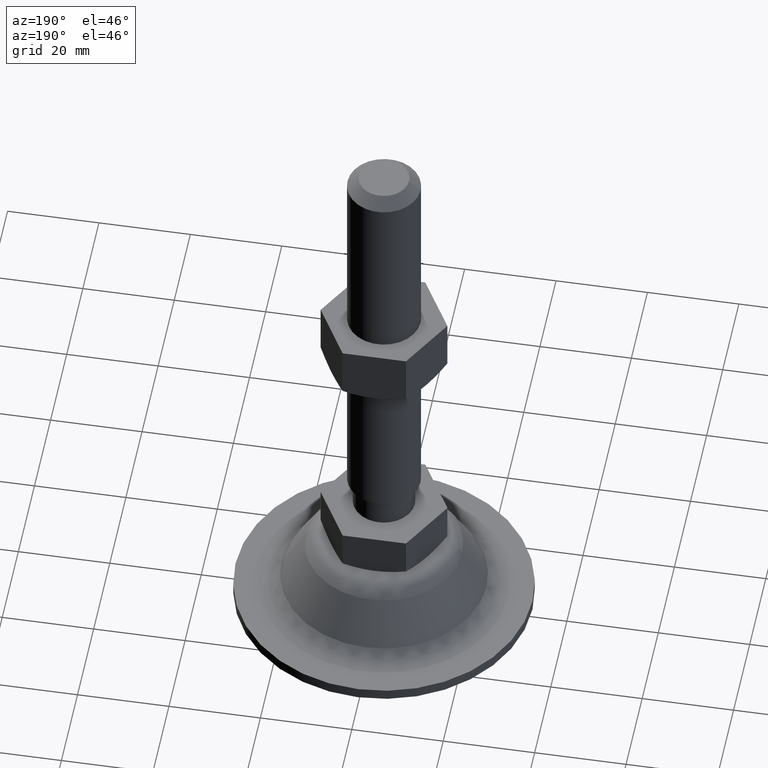
[diagram: clean part render]
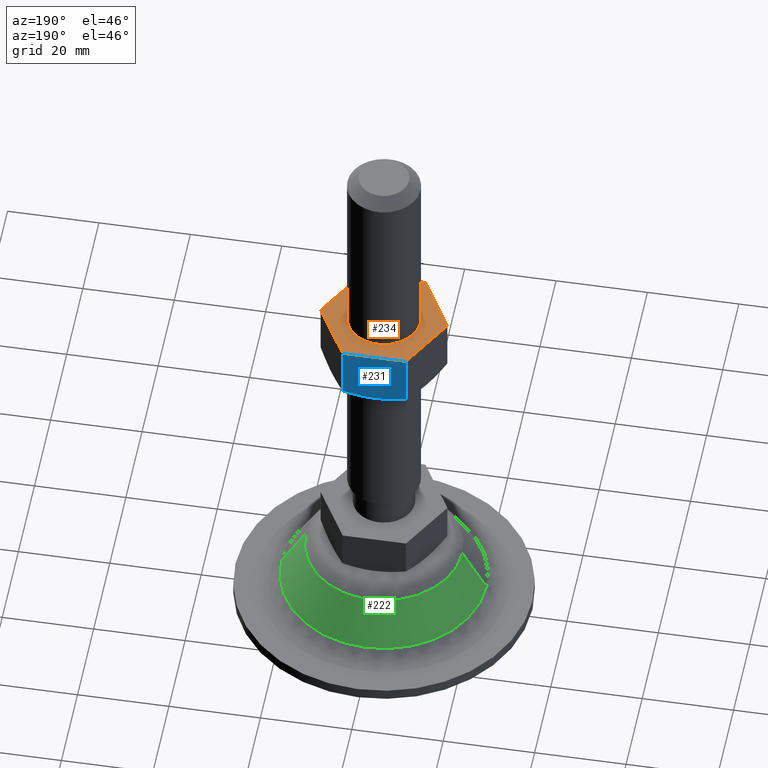
[diagram: same view with three faces highlighted in distinct colors, each labeled with its STEP entity id]
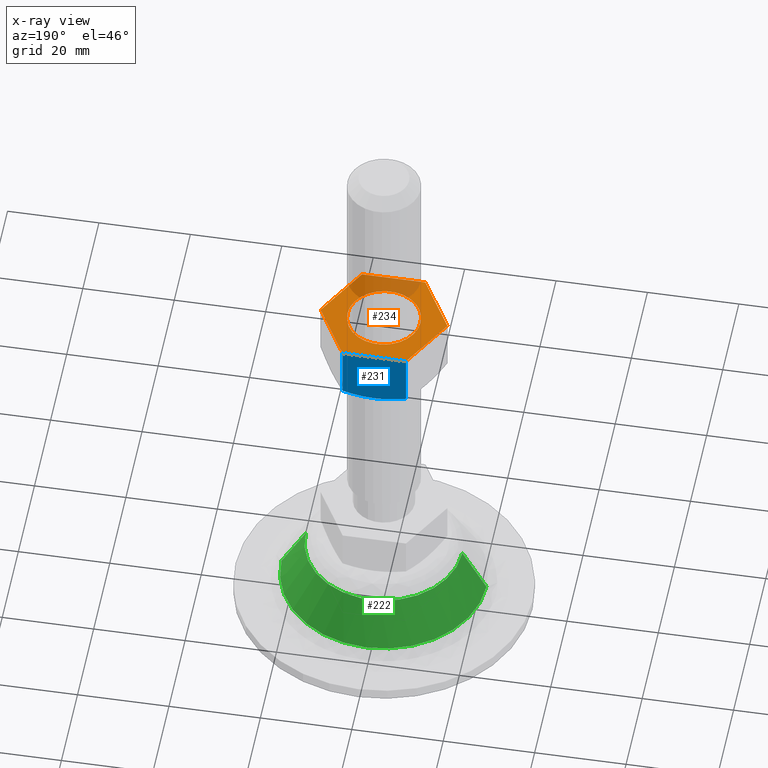
[diagram: x-ray of the same camera — body ghosted, the three highlighted faces saturated]
A machine part, auxiliary view with three faces highlighted in distinct colors.
The next image is the same camera in x-ray (body ghosted, the three faces saturated) — at least one of them is partly hidden behind the body in this view.
Their STEP definitions:

[orange] entity #234 — the highlighted planar face has unit normal (0, 0, -1).
#234=ADVANCED_FACE('',(#1101,#1102),#1100,.F.);
#1100=PLANE('',#1842);
#1101=FACE_OUTER_BOUND('',#1843,.T.);
#1102=FACE_BOUND('',#1844,.T.);
#1839=CARTESIAN_POINT('',(1.66276877527E+01,-1.44000000000E+01,5.65000000000E+01));
#1840=DIRECTION('',(-0.00000000000E+00,0.00000000000E+00,-1.00000000000E+00));
#1841=DIRECTION('',(-1.00000000000E+00,0.00000000000E+00,0.00000000000E+00));
#1842=AXIS2_PLACEMENT_3D('',#1839,#1840,#1841);
#1843=EDGE_LOOP('',(#2265,#2266,#2267,#2268,#2269,#2270));
#1844=EDGE_LOOP('',(#2271,#2272));
#2265=ORIENTED_EDGE('',*,*,#2482,.T.);
#2266=ORIENTED_EDGE('',*,*,#2479,.T.);
#2267=ORIENTED_EDGE('',*,*,#2476,.T.);
#2268=ORIENTED_EDGE('',*,*,#2485,.T.);
#2269=ORIENTED_EDGE('',*,*,#2488,.T.);
#2270=ORIENTED_EDGE('',*,*,#2490,.T.);
#2271=ORIENTED_EDGE('',*,*,#2495,.F.);
#2272=ORIENTED_EDGE('',*,*,#2496,.F.);
#2476=EDGE_CURVE('',#3696,#3710,#3717,.T.);
#2479=EDGE_CURVE('',#3724,#3696,#3737,.T.);
#2482=EDGE_CURVE('',#3744,#3724,#3757,.T.);
#2485=EDGE_CURVE('',#3710,#3770,#3777,.T.);
#2488=EDGE_CURVE('',#3770,#3790,#3797,.T.);
#2490=EDGE_CURVE('',#3790,#3744,#3809,.T.);
#2495=EDGE_CURVE('',#3843,#3844,#3845,.T.);
#2496=EDGE_CURVE('',#3844,#3843,#3851,.T.);
#3696=VERTEX_POINT('',#4680);
#3710=VERTEX_POINT('',#4697);
#3717=LINE('',#4701,#4702);
#3724=VERTEX_POINT('',#4705);
#3737=LINE('',#4723,#4724);
#3744=VERTEX_POINT('',#4727);
#3757=LINE('',#4743,#4744);
#3770=VERTEX_POINT('',#4759);
#3777=LINE('',#4763,#4764);
#3790=VERTEX_POINT('',#4781);
#3797=LINE('',#4785,#4786);
#3809=LINE('',#4800,#4801);
#3843=VERTEX_POINT('',#4823);
#3844=VERTEX_POINT('',#4824);
#3845=CIRCLE('',#4828,8.00000000000E+00);
#3851=CIRCLE('',#4832,8.00000000000E+00);
#4680=CARTESIAN_POINT('',(6.92820323028E+00,-1.20000000000E+01,5.65000000000E+01));
#4697=CARTESIAN_POINT('',(1.38564064606E+01,0.00000000000E+00,5.65000000000E+01));
#4701=CARTESIAN_POINT('',(6.92820323028E+00,-1.20000000000E+01,5.65000000000E+01));
#4702=VECTOR('',#4703,1.38564064606E+01);
#4703=DIRECTION('',(5.00000000000E-01,8.66025403784E-01,0.00000000000E+00));
#4705=CARTESIAN_POINT('',(-6.92820323028E+00,-1.20000000000E+01,5.65000000000E+01));
#4723=CARTESIAN_POINT('',(-6.92820323028E+00,-1.20000000000E+01,5.65000000000E+01));
#4724=VECTOR('',#4725,1.38564064606E+01);
#4725=DIRECTION('',(1.00000000000E+00,-3.69208835786E-14,0.00000000000E+00));
#4727=CARTESIAN_POINT('',(-1.38564064606E+01,0.00000000000E+00,5.65000000000E+01));
#4743=CARTESIAN_POINT('',(-1.38564064606E+01,-5.41788836017E-14,5.65000000000E+01));
#4744=VECTOR('',#4745,1.38564064606E+01);
#4745=DIRECTION('',(5.00000000000E-01,-8.66025403784E-01,0.00000000000E+00));
#4759=CARTESIAN_POINT('',(6.92820323028E+00,1.20000000000E+01,5.65000000000E+01));
#4763=CARTESIAN_POINT('',(1.38564064606E+01,-1.77635683940E-15,5.65000000000E+01));
#4764=VECTOR('',#4765,1.38564064606E+01);
#4765=DIRECTION('',(-5.00000000000E-01,8.66025403784E-01,0.00000000000E+00));
#4781=CARTESIAN_POINT('',(-6.92820323027E+00,1.20000000000E+01,5.65000000000E+01));
#4785=CARTESIAN_POINT('',(6.92820323028E+00,1.20000000000E+01,5.65000000000E+01));
#4786=VECTOR('',#4787,1.38564064606E+01);
#4787=DIRECTION('',(-1.00000000000E+00,9.02510487476E-14,0.00000000000E+00));
#4800=CARTESIAN_POINT('',(-6.92820323027E+00,1.20000000000E+01,5.65000000000E+01));
#4801=VECTOR('',#4802,1.38564064606E+01);
#4802=DIRECTION('',(-5.00000000000E-01,-8.66025403784E-01,0.00000000000E+00));
#4823=CARTESIAN_POINT('',(8.00000000000E+00,1.48029736617E-15,5.65000000000E+01));
#4824=CARTESIAN_POINT('',(-8.00000000000E+00,0.00000000000E+00,5.65000000000E+01));
#4825=CARTESIAN_POINT('',(0.00000000000E+00,0.00000000000E+00,5.65000000000E+01));
#4826=DIRECTION('',(0.00000000000E+00,0.00000000000E+00,1.00000000000E+00));
#4827=DIRECTION('',(-1.00000000000E+00,-1.22460635382E-16,0.00000000000E+00));
#4828=AXIS2_PLACEMENT_3D('',#4825,#4826,#4827);
#4829=CARTESIAN_POINT('',(0.00000000000E+00,0.00000000000E+00,5.65000000000E+01));
#4830=DIRECTION('',(0.00000000000E+00,0.00000000000E+00,1.00000000000E+00));
#4831=DIRECTION('',(-1.00000000000E+00,-1.22460635382E-16,0.00000000000E+00));
#4832=AXIS2_PLACEMENT_3D('',#4829,#4830,#4831);

[blue] entity #231 — the highlighted planar face has unit normal (0, 1, 0).
#231=ADVANCED_FACE('',(#1070),#1069,.T.);
#1069=PLANE('',#1826);
#1070=FACE_OUTER_BOUND('',#1827,.T.);
#1823=CARTESIAN_POINT('',(8.31384387633E+00,1.20000000000E+01,4.25173685591E+01));
#1824=DIRECTION('',(9.02640688075E-14,1.00000000000E+00,0.00000000000E+00));
#1825=DIRECTION('',(-1.00000000000E+00,9.02640688075E-14,0.00000000000E+00));
#1826=AXIS2_PLACEMENT_3D('',#1823,#1824,#1825);
#1827=EDGE_LOOP('',(#2253,#2254,#2255,#2256));
#2253=ORIENTED_EDGE('',*,*,#2484,.F.);
#2254=ORIENTED_EDGE('',*,*,#2486,.T.);
#2255=ORIENTED_EDGE('',*,*,#2487,.T.);
#2256=ORIENTED_EDGE('',*,*,#2488,.F.);
#2484=EDGE_CURVE('',#3763,#3770,#3771,.T.);
#2486=EDGE_CURVE('',#3763,#3783,#3784,.T.);
#2487=EDGE_CURVE('',#3783,#3790,#3791,.T.);
#2488=EDGE_CURVE('',#3770,#3790,#3797,.T.);
#3763=VERTEX_POINT('',#4746);
#3770=VERTEX_POINT('',#4759);
#3771=LINE('',#4760,#4761);
#3783=VERTEX_POINT('',#4766);
#3784=(BOUNDED_CURVE() B_SPLINE_CURVE(3,(#4767,#4768,#4769,#4770,#4771,#4772,#4773,#4774,#4775,#4776,#4777,#4778,#4779,#4780),.UNSPECIFIED.,.F.,.F.) B_SPLINE_CURVE_WITH_KNOTS((4,2,2,2,2,2,4),(-2.69684747249E-02,-2.34598961264E-02,-2.17056068272E-02,-1.99513175280E-02,-1.64427389296E-02,-1.46884496304E-02,-1.29341603312E-02),.UNSPECIFIED.) CURVE() GEOMETRIC_REPRESENTATION_ITEM() RATIONAL_B_SPLINE_CURVE((1.00000000000E+00,1.00000000000E+00,1.00000000000E+00,1.00000000000E+00,1.00000000000E+00,1.00000000000E+00,1.00000000000E+00,1.00000000000E+00,1.00000000000E+00,1.00000000000E+00,1.00000000000E+00,1.00000000000E+00,1.00000000000E+00,1.00000000000E+00)) REPRESENTATION_ITEM('') );
#3790=VERTEX_POINT('',#4781);
#3791=LINE('',#4782,#4783);
#3797=LINE('',#4785,#4786);
#4746=CARTESIAN_POINT('',(6.92820323028E+00,1.20000000000E+01,4.48604719041E+01));
#4759=CARTESIAN_POINT('',(6.92820323028E+00,1.20000000000E+01,5.65000000000E+01));
#4760=CARTESIAN_POINT('',(6.92820323028E+00,1.20000000000E+01,4.48604719041E+01));
#4761=VECTOR('',#4762,1.16395280958E+01);
#4762=DIRECTION('',(0.00000000000E+00,0.00000000000E+00,1.00000000000E+00));
#4766=CARTESIAN_POINT('',(-6.92820323027E+00,1.20000000000E+01,4.48604719041E+01));
#4767=CARTESIAN_POINT('',(6.92820323028E+00,1.20000000000E+01,4.48604719041E+01));
#4768=CARTESIAN_POINT('',(5.80795744473E+00,1.20000000000E+01,4.45370848012E+01));
#4769=CARTESIAN_POINT('',(4.67369239590E+00,1.20000000000E+01,4.42679989547E+01));
#4770=CARTESIAN_POINT('',(2.94076384365E+00,1.20000000000E+01,4.39865001243E+01));
#4771=CARTESIAN_POINT('',(2.35783903988E+00,1.20000000000E+01,4.39131259368E+01));
#4772=CARTESIAN_POINT('',(1.17971032349E+00,1.20000000000E+01,4.38139386228E+01));
#4773=CARTESIAN_POINT('',(5.89301566878E-01,1.20000000000E+01,4.37887545501E+01));
#4774=CARTESIAN_POINT('',(-1.17018011384E+00,1.20000000000E+01,4.37885168719E+01));
#4775=CARTESIAN_POINT('',(-2.33392188463E+00,1.20000000000E+01,4.38893469595E+01));
#4776=CARTESIAN_POINT('',(-4.06778823012E+00,1.20000000000E+01,4.41688898052E+01));
#4777=CARTESIAN_POINT('',(-4.64381556499E+00,1.20000000000E+01,4.42831303510E+01));
#4778=CARTESIAN_POINT('',(-5.79257400674E+00,1.20000000000E+01,4.45476141100E+01));
#4779=CARTESIAN_POINT('',(-6.36374869851E+00,1.20000000000E+01,4.46975279162E+01));
#4780=CARTESIAN_POINT('',(-6.92820323027E+00,1.20000000000E+01,4.48604719041E+01));
#4781=CARTESIAN_POINT('',(-6.92820323027E+00,1.20000000000E+01,5.65000000000E+01));
#4782=CARTESIAN_POINT('',(-6.92820323027E+00,1.20000000000E+01,4.48604719041E+01));
#4783=VECTOR('',#4784,1.16395280958E+01);
#4784=DIRECTION('',(0.00000000000E+00,0.00000000000E+00,1.00000000000E+00));
#4785=CARTESIAN_POINT('',(6.92820323028E+00,1.20000000000E+01,5.65000000000E+01));
#4786=VECTOR('',#4787,1.38564064606E+01);
#4787=DIRECTION('',(-1.00000000000E+00,9.02510487476E-14,0.00000000000E+00));

[green] entity #222 — the highlighted face is a freeform B-spline surface patch.
#222=ADVANCED_FACE('',(#980),#979,.T.);
#979=( BOUNDED_SURFACE() B_SPLINE_SURFACE( 2,1,((#1730,#1731),(#1732,#1733),(#1734,#1735),(#1736,#1737),(#1738,#1739)), .UNSPECIFIED.,.F.,.F.,.F.) B_SPLINE_SURFACE_WITH_KNOTS((3,2,3),(2,2),(0.00000000000E+00,5.00000000000E-01,1.00000000000E+00),(0.00000000000E+00,1.00000000000E+00), .UNSPECIFIED. ) GEOMETRIC_REPRESENTATION_ITEM() RATIONAL_B_SPLINE_SURFACE(((1.00000000000E+00,1.00000000000E+00),(7.07106781187E-01,7.07106781187E-01),(1.00000000000E+00,1.00000000000E+00),(7.07106781187E-01,7.07106781187E-01),(1.00000000000E+00,1.00000000000E+00))) REPRESENTATION_ITEM('') SURFACE() );
#980=FACE_OUTER_BOUND('',#1740,.T.);
#1730=CARTESIAN_POINT('',(-1.71457232475E+01,2.09974550941E-15,-1.34262376818E+01));
#1731=CARTESIAN_POINT('',(-2.24181485332E+01,2.74543138439E-15,-2.28408304557E+01));
#1732=CARTESIAN_POINT('',(-1.71457232475E+01,1.71457232475E+01,-1.34262376818E+01));
#1733=CARTESIAN_POINT('',(-2.24181485332E+01,2.24181485331E+01,-2.28408304557E+01));
#1734=CARTESIAN_POINT('',(-3.19449515270E-11,1.71457232475E+01,-1.34262376818E+01));
#1735=CARTESIAN_POINT('',(-3.19446286841E-11,2.24181485331E+01,-2.28408304557E+01));
#1736=CARTESIAN_POINT('',(1.71457232474E+01,1.71457232475E+01,-1.34262376818E+01));
#1737=CARTESIAN_POINT('',(2.24181485331E+01,2.24181485331E+01,-2.28408304557E+01));
#1738=CARTESIAN_POINT('',(1.71457232474E+01,0.00000000000E+00,-1.34262376818E+01));
#1739=CARTESIAN_POINT('',(2.24181485331E+01,0.00000000000E+00,-2.28408304557E+01));
#1740=EDGE_LOOP('',(#2217,#2218,#2219,#2220));
#2217=ORIENTED_EDGE('',*,*,#2464,.T.);
#2218=ORIENTED_EDGE('',*,*,#2466,.T.);
#2219=ORIENTED_EDGE('',*,*,#2468,.F.);
#2220=ORIENTED_EDGE('',*,*,#2467,.F.);
#2464=EDGE_CURVE('',#3620,#3619,#3639,.T.);
#2466=EDGE_CURVE('',#3619,#3645,#3653,.T.);
#2467=EDGE_CURVE('',#3620,#3646,#3659,.T.);
#2468=EDGE_CURVE('',#3646,#3645,#3665,.T.);
#3619=VERTEX_POINT('',#4637);
#3620=VERTEX_POINT('',#4638);
#3639=CIRCLE('',#4654,1.71457232475E+01);
#3645=VERTEX_POINT('',#4655);
#3646=VERTEX_POINT('',#4656);
#3653=(BOUNDED_CURVE() B_SPLINE_CURVE(1,(#4661,#4662),.UNSPECIFIED.,.F.,.F.) B_SPLINE_CURVE_WITH_KNOTS((2,2),(0.00000000000E+00,1.00000000000E+00),.UNSPECIFIED.) CURVE() GEOMETRIC_REPRESENTATION_ITEM() RATIONAL_B_SPLINE_CURVE((1.00000000000E+00,1.00000000000E+00)) REPRESENTATION_ITEM('') );
#3659=(BOUNDED_CURVE() B_SPLINE_CURVE(1,(#4663,#4664),.UNSPECIFIED.,.F.,.F.) B_SPLINE_CURVE_WITH_KNOTS((2,2),(0.00000000000E+00,1.00000000000E+00),.UNSPECIFIED.) CURVE() GEOMETRIC_REPRESENTATION_ITEM() RATIONAL_B_SPLINE_CURVE((7.50000000000E-01,7.50000000000E-01)) REPRESENTATION_ITEM('') );
#3665=CIRCLE('',#4668,2.24181485331E+01);
#4637=CARTESIAN_POINT('',(1.71457232474E+01,1.18423789293E-15,-1.34262376818E+01));
#4638=CARTESIAN_POINT('',(-1.71457232475E+01,0.00000000000E+00,-1.34262376818E+01));
#4651=CARTESIAN_POINT('',(-3.19460013998E-11,0.00000000000E+00,-1.34262376818E+01));
#4652=DIRECTION('',(-0.00000000000E+00,0.00000000000E+00,-1.00000000000E+00));
#4653=DIRECTION('',(-1.00000000000E+00,-1.22460635382E-16,0.00000000000E+00));
#4654=AXIS2_PLACEMENT_3D('',#4651,#4652,#4653);
#4655=CARTESIAN_POINT('',(2.24181485331E+01,2.36847578587E-15,-2.28408304557E+01));
#4656=CARTESIAN_POINT('',(-2.24181485332E+01,0.00000000000E+00,-2.28408304557E+01));
#4661=CARTESIAN_POINT('',(1.71457232474E+01,-4.19949101881E-15,-1.34262376818E+01));
#4662=CARTESIAN_POINT('',(2.24181485331E+01,-5.49086276879E-15,-2.28408304557E+01));
#4663=CARTESIAN_POINT('',(-1.71457232475E+01,4.73695157173E-15,-1.34262376818E+01));
#4664=CARTESIAN_POINT('',(-2.24181485332E+01,7.10542735760E-15,-2.28408304557E+01));
#4665=CARTESIAN_POINT('',(-3.19460013998E-11,0.00000000000E+00,-2.28408304557E+01));
#4666=DIRECTION('',(-0.00000000000E+00,0.00000000000E+00,-1.00000000000E+00));
#4667=DIRECTION('',(-1.00000000000E+00,-1.22460635382E-16,0.00000000000E+00));
#4668=AXIS2_PLACEMENT_3D('',#4665,#4666,#4667);